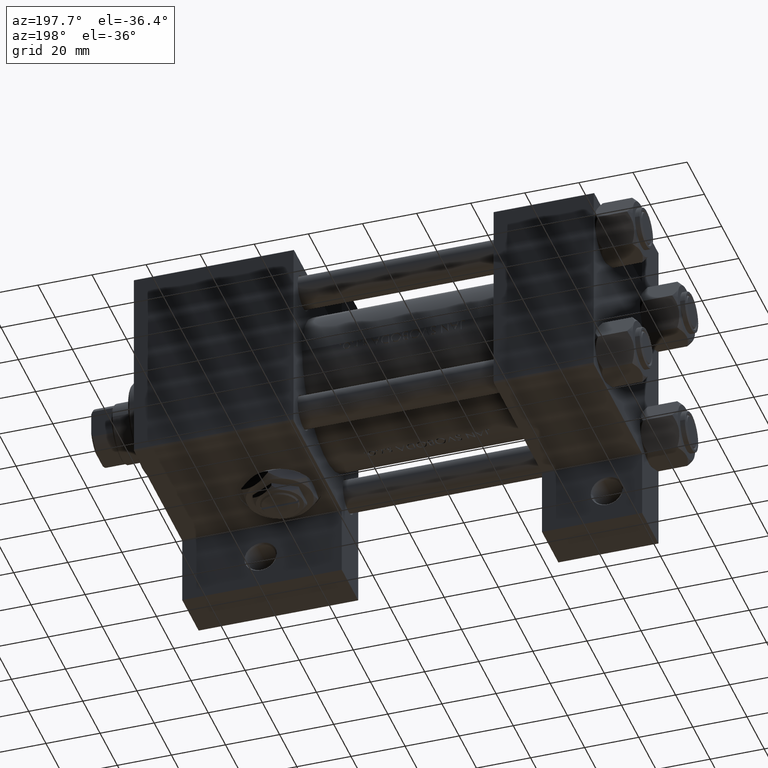
[diagram: clean part render]
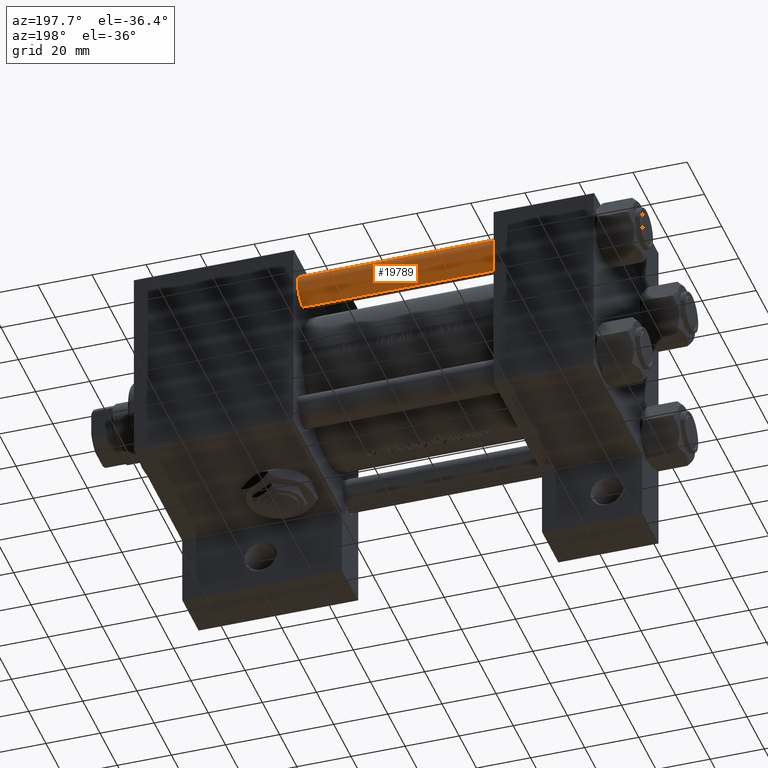
[diagram: same view with one face highlighted and labeled with its STEP entity id]
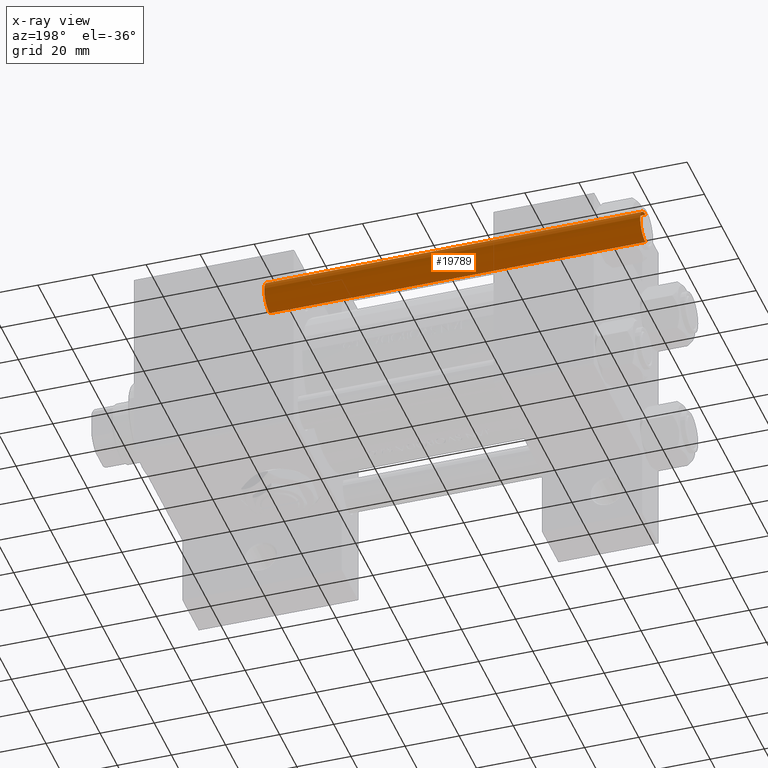
[diagram: x-ray of the same camera — body ghosted, the highlighted face saturated]
A machine part, auxiliary view. The second image highlights one B-rep face of the part: STEP entity #19789.
The next image is the same camera in x-ray: the body ghosted, the highlighted face saturated — about 0% of this face is hidden behind the body in this view.
In plain terms, the highlighted cylindrical surface (edge-blend (fillet) strip) has radius 6 mm, axis along (-1, -0, -0).
Its self-contained STEP definition (entity closure, byte-faithful):
#268 = ORIENTED_EDGE ( 'NONE', *, *, #34265, .F. ) ;
#1021 = VERTEX_POINT ( 'NONE', #21172 ) ;
#1204 = VERTEX_POINT ( 'NONE', #11198 ) ;
#2447 = EDGE_CURVE ( 'NONE', #1021, #1204, #18851, .T. ) ;
#4319 = CARTESIAN_POINT ( 'NONE',  ( -6.000000000000000888, 0.000000000000000000, 0.5000000000000004441 ) ) ;
#4910 = VECTOR ( 'NONE', #30328, 1000.000000000000000 ) ;
#5903 = VECTOR ( 'NONE', #47786, 1000.000000000000000 ) ;
#8127 = ORIENTED_EDGE ( 'NONE', *, *, #17407, .T. ) ;
#9125 = DIRECTION ( 'NONE',  ( -0.000000000000000000, -0.000000000000000000, 1.000000000000000000 ) ) ;
#9177 = EDGE_LOOP ( 'NONE', ( #37221, #13226, #8127, #268 ) ) ;
#11198 = CARTESIAN_POINT ( 'NONE',  ( 6.000000000000000888, 7.347880794884120722E-16, 0.5000000000000004441 ) ) ;
#11861 = AXIS2_PLACEMENT_3D ( 'NONE', #42606, #27915, #46100 ) ;
#12625 = DIRECTION ( 'NONE',  ( 1.000000000000000000, 0.000000000000000000, 0.000000000000000000 ) ) ;
#13226 = ORIENTED_EDGE ( 'NONE', *, *, #2447, .T. ) ;
#17318 = CARTESIAN_POINT ( 'NONE',  ( 0.000000000000000000, 0.000000000000000000, 0.5000000000000004441 ) ) ;
#17407 = EDGE_CURVE ( 'NONE', #1204, #40578, #42513, .T. ) ;
#18851 = LINE ( 'NONE', #34059, #4910 ) ;
#19789 = ADVANCED_FACE ( 'NONE', ( #36807 ), #21850, .T. ) ;
#21172 = CARTESIAN_POINT ( 'NONE',  ( 6.000000000000000888, 7.347880794884120722E-16, 139.4999999999999716 ) ) ;
#21372 = CARTESIAN_POINT ( 'NONE',  ( -6.000000000000000888, 0.000000000000000000, 140.0000000000000000 ) ) ;
#21850 = CYLINDRICAL_SURFACE ( 'NONE', #40196, 6.000000000000000888 ) ;
#27915 = DIRECTION ( 'NONE',  ( 0.000000000000000000, 0.000000000000000000, -1.000000000000000000 ) ) ;
#28495 = EDGE_CURVE ( 'NONE', #31249, #1021, #48447, .T. ) ;
#28581 = CARTESIAN_POINT ( 'NONE',  ( -6.000000000000000888, 0.000000000000000000, 139.4999999999999716 ) ) ;
#30328 = DIRECTION ( 'NONE',  ( -0.000000000000000000, -0.000000000000000000, -1.000000000000000000 ) ) ;
#30607 = AXIS2_PLACEMENT_3D ( 'NONE', #17318, #9125, #12625 ) ;
#31249 = VERTEX_POINT ( 'NONE', #28581 ) ;
#34059 = CARTESIAN_POINT ( 'NONE',  ( 6.000000000000000888, 7.347880794884120722E-16, 140.0000000000000000 ) ) ;
#34265 = EDGE_CURVE ( 'NONE', #31249, #40578, #37315, .T. ) ;
#36807 = FACE_OUTER_BOUND ( 'NONE', #9177, .T. ) ;
#37221 = ORIENTED_EDGE ( 'NONE', *, *, #28495, .T. ) ;
#37315 = LINE ( 'NONE', #21372, #5903 ) ;
#37544 = DIRECTION ( 'NONE',  ( -0.000000000000000000, -0.000000000000000000, -1.000000000000000000 ) ) ;
#40196 = AXIS2_PLACEMENT_3D ( 'NONE', #45022, #37544, #48018 ) ;
#40578 = VERTEX_POINT ( 'NONE', #4319 ) ;
#42513 = CIRCLE ( 'NONE', #30607, 6.000000000000000888 ) ;
#42606 = CARTESIAN_POINT ( 'NONE',  ( 0.000000000000000000, 0.000000000000000000, 139.4999999999999716 ) ) ;
#45022 = CARTESIAN_POINT ( 'NONE',  ( 0.000000000000000000, 0.000000000000000000, 140.0000000000000000 ) ) ;
#46100 = DIRECTION ( 'NONE',  ( 1.000000000000000000, 0.000000000000000000, 0.000000000000000000 ) ) ;
#47786 = DIRECTION ( 'NONE',  ( -0.000000000000000000, -0.000000000000000000, -1.000000000000000000 ) ) ;
#48018 = DIRECTION ( 'NONE',  ( -1.000000000000000000, 0.000000000000000000, 0.000000000000000000 ) ) ;
#48447 = CIRCLE ( 'NONE', #11861, 6.000000000000000888 ) ;